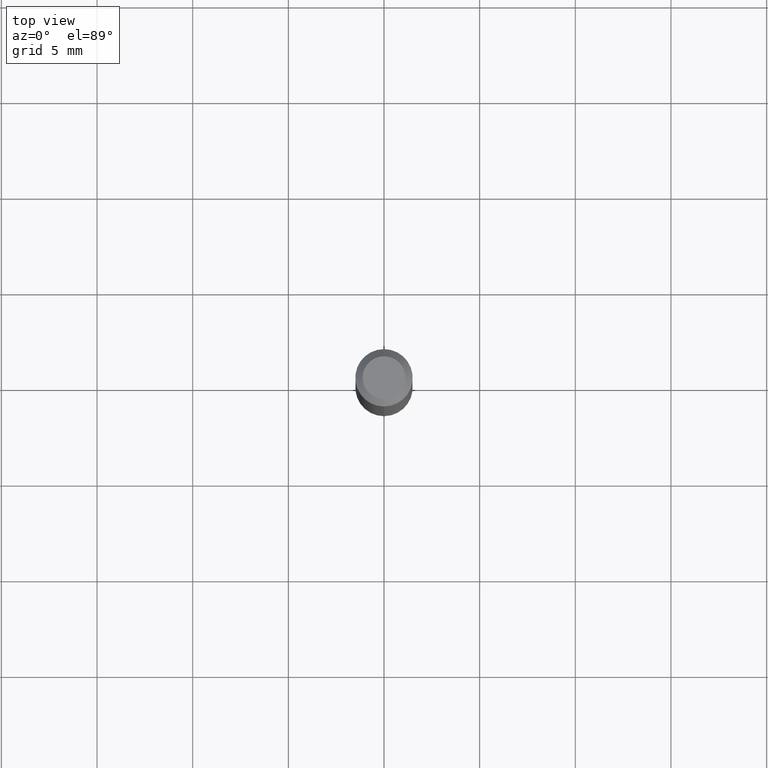
[diagram: clean part render]
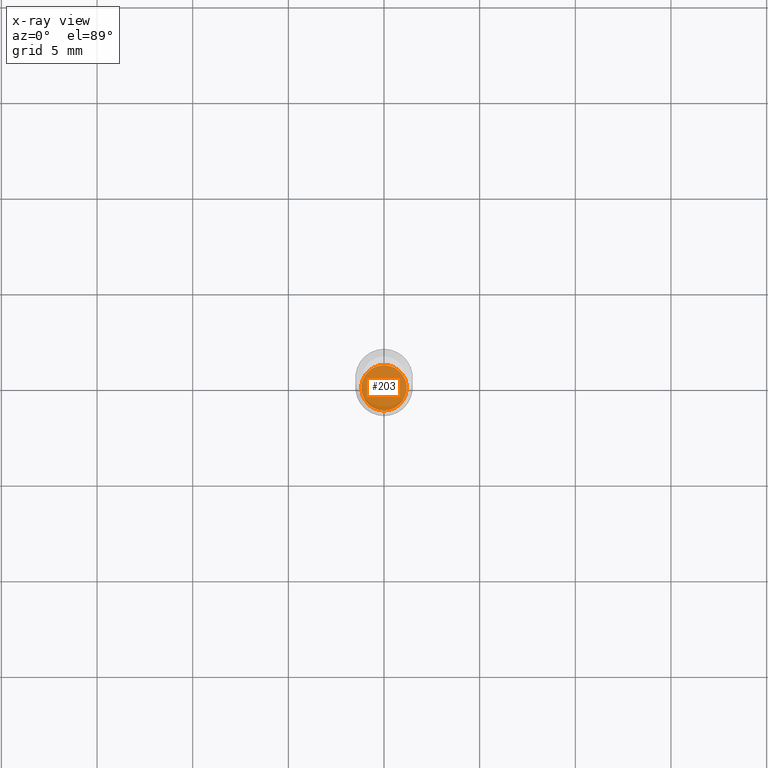
[diagram: x-ray — body ghosted, one internal face saturated and labeled with its STEP entity id]
A machine part, top view, then the same camera in x-ray: the body is ghosted and one INTERNAL B-rep face — a face not visible from any outside direction — is saturated and labeled: STEP entity #203.
In plain terms, the highlighted planar face has unit normal (-0, 0, 1).
Its self-contained STEP definition (entity closure, byte-faithful):
#17 = AXIS2_PLACEMENT_3D ( 'NONE', #455, #444, #244 ) ;
#24 = CIRCLE ( 'NONE', #476, 0.04674999999999999295 ) ;
#25 = DIRECTION ( 'NONE',  ( -2.445509875133232403E-29, 3.491422525771973150E-15, 1.000000000000000000 ) ) ;
#27 = DIRECTION ( 'NONE',  ( -6.982962677686266711E-15, -1.000000000000000000, 2.921762560068730989E-15 ) ) ;
#106 = ORIENTED_EDGE ( 'NONE', *, *, #168, .F. ) ;
#168 = EDGE_CURVE ( 'NONE', #222, #250, #190, .T. ) ;
#176 = FACE_OUTER_BOUND ( 'NONE', #332, .T. ) ;
#190 = CIRCLE ( 'NONE', #196, 0.04674999999999999295 ) ;
#193 = ORIENTED_EDGE ( 'NONE', *, *, #378, .F. ) ;
#196 = AXIS2_PLACEMENT_3D ( 'NONE', #370, #25, #27 ) ;
#203 = ADVANCED_FACE ( 'NONE', ( #176 ), #331, .F. ) ;
#204 = DIRECTION ( 'NONE',  ( -6.982962677686266711E-15, -1.000000000000000000, 2.921762560068730989E-15 ) ) ;
#222 = VERTEX_POINT ( 'NONE', #397 ) ;
#244 = DIRECTION ( 'NONE',  ( -6.982962677686265922E-15, -1.000000000000000000, 3.491422525771973150E-15 ) ) ;
#250 = VERTEX_POINT ( 'NONE', #490 ) ;
#315 = CARTESIAN_POINT ( 'NONE',  ( 2.965425274586557416E-29, -4.233698954751094206E-15, -1.212599999999999900 ) ) ;
#331 = PLANE ( 'NONE',  #17 ) ;
#332 = EDGE_LOOP ( 'NONE', ( #106, #193 ) ) ;
#357 = DIRECTION ( 'NONE',  ( -2.445509875133232403E-29, 3.491422525771973150E-15, 1.000000000000000000 ) ) ;
#370 = CARTESIAN_POINT ( 'NONE',  ( 2.965425274586557416E-29, -4.233698954751094206E-15, -1.212599999999999900 ) ) ;
#378 = EDGE_CURVE ( 'NONE', #250, #222, #24, .T. ) ;
#397 = CARTESIAN_POINT ( 'NONE',  ( -3.264535051818032208E-16, -0.04675000000000423261, -1.212599999999999900 ) ) ;
#444 = DIRECTION ( 'NONE',  ( -2.445509875133232123E-29, 3.491422525771973150E-15, 1.000000000000000000 ) ) ;
#455 = CARTESIAN_POINT ( 'NONE',  ( 2.965425274586557416E-29, -4.233698954751094206E-15, -1.212599999999999900 ) ) ;
#476 = AXIS2_PLACEMENT_3D ( 'NONE', #315, #357, #204 ) ;
#490 = CARTESIAN_POINT ( 'NONE',  ( 3.339550858072768183E-16, 0.04674999999999576022, -1.212600000000000122 ) ) ;